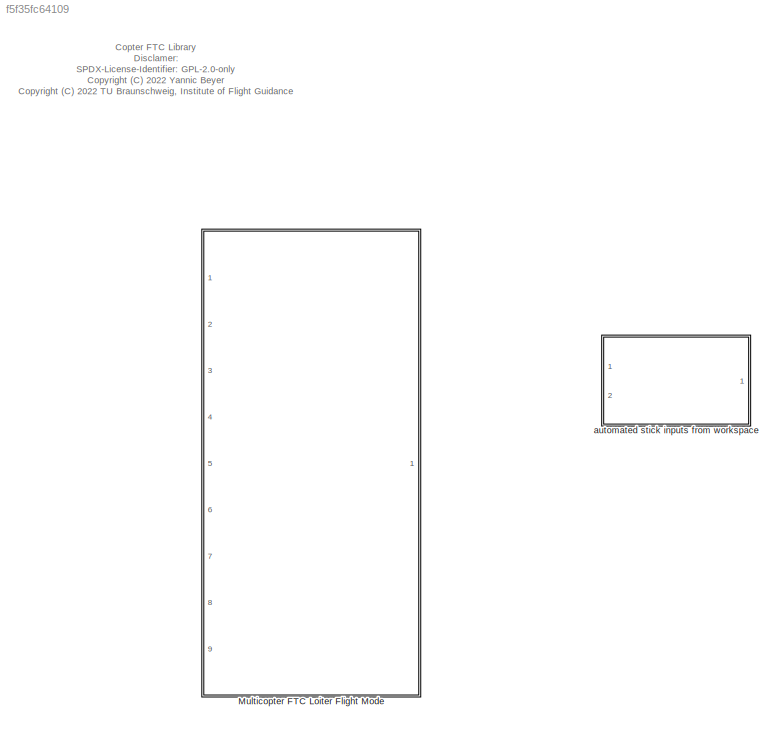
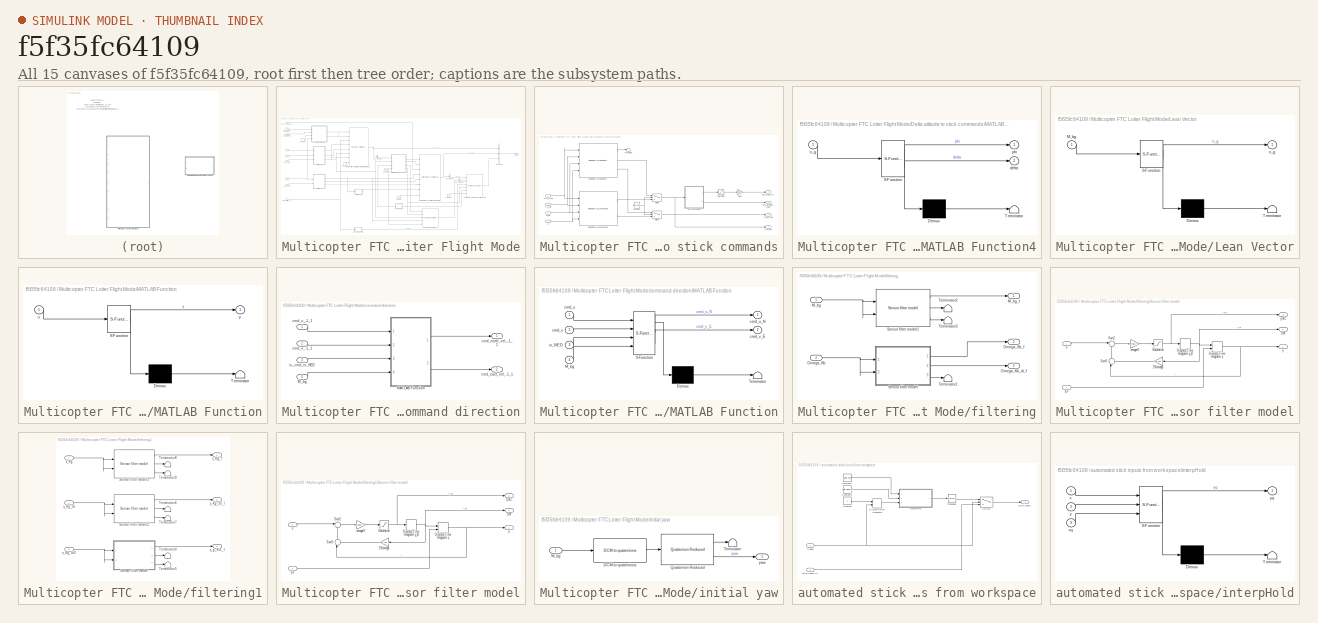
[diagram: thumbnail index - all 15 canvases of the model, root first then tree order]
MODEL slx_f5f35fc64109
KIND library
CONFIG AbsTol = auto
CONFIG EnableMultiTasking = off
CONFIG FixedStep = auto
CONFIG MaxStep = auto
CONFIG MinStep = auto
CONFIG RelTol = 1e-3
CONFIG SampleTimeConstraint = Unconstrained
CONFIG Solver = VariableStepAuto
CONFIG SolverName = VariableStepAuto
CONFIG StartTime = 0.0
CONFIG StopTime = 10.0
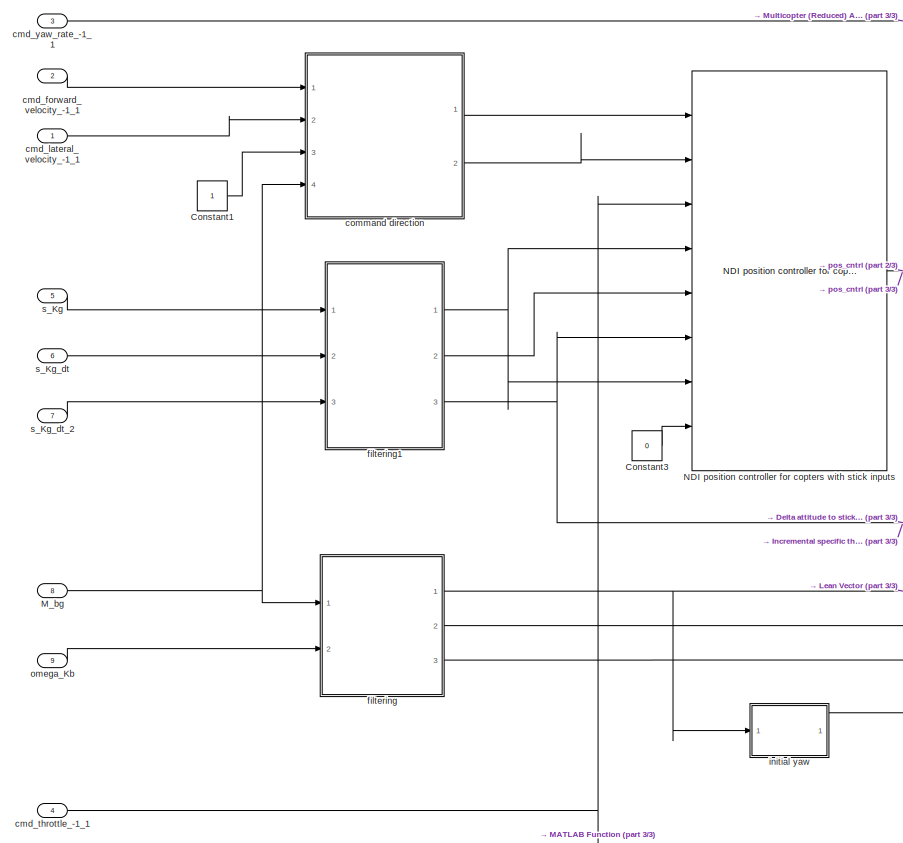
[diagram: Multicopter FTC Loiter Flight Mode - part 1/3, middle left region]
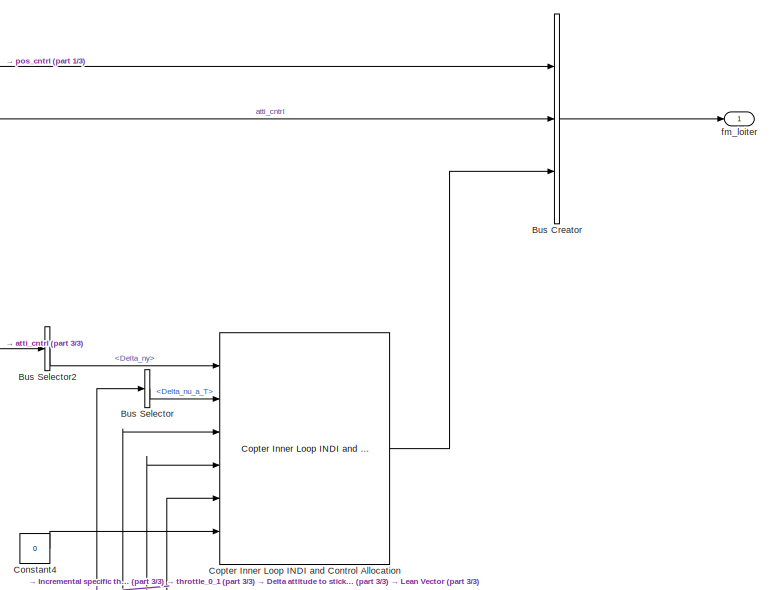
[diagram: Multicopter FTC Loiter Flight Mode - part 2/3, middle right region]
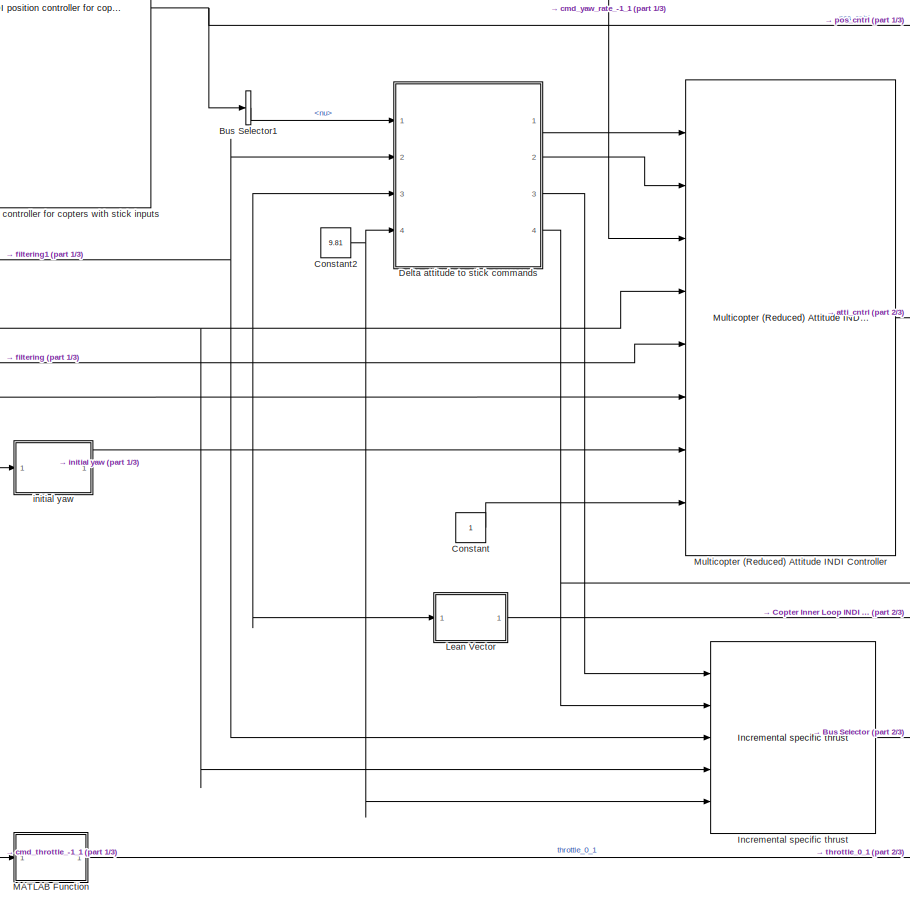
[diagram: Multicopter FTC Loiter Flight Mode - part 3/3, center side, full height]
BLOCK [SubSystem] Multicopter FTC Loiter Flight Mode
  Ports = [9, 1]
  RequestExecContextInheritance = off
BLOCK [BusCreator] Multicopter FTC Loiter Flight Mode/Bus Creator
  DisplayOption = bar
  InheritFromInputs = on
  Inputs = 3
  Ports = [3, 1]
BLOCK [BusSelector] Multicopter FTC Loiter Flight Mode/Bus Selector
  OutputAsBus = off
  OutputSignals = Delta_nu_a_T
  Ports = [1, 1]
BLOCK [BusSelector] Multicopter FTC Loiter Flight Mode/Bus Selector1
  OutputAsBus = off
  OutputSignals = pseudo_control.nu
  Ports = [1, 1]
BLOCK [BusSelector] Multicopter FTC Loiter Flight Mode/Bus Selector2
  OutputAsBus = off
  OutputSignals = pseudo_control.Delta_ny
  Ports = [1, 1]
BLOCK [Constant] Multicopter FTC Loiter Flight Mode/Constant
BLOCK [Constant] Multicopter FTC Loiter Flight Mode/Constant1
BLOCK [Constant] Multicopter FTC Loiter Flight Mode/Constant2
  Value = 9.81
BLOCK [Constant] Multicopter FTC Loiter Flight Mode/Constant3
  Value = 0
BLOCK [Constant] Multicopter FTC Loiter Flight Mode/Constant4
  Value = 0
BLOCK [Reference] Multicopter FTC Loiter Flight Mode/Copter Inner Loop INDI and Control Allocation  REF=indi_lib/Copter Inner Loop INDI and Control Allocation  (lib defined in slx_750e0a027594)
  Ports = [6, 1]
  SourceBlock = indi_lib/Copter Inner Loop INDI and Control Allocation
  SourceProductName = LADAC
BLOCK [SubSystem] Multicopter FTC Loiter Flight Mode/Delta attitude to stick commands
  Ports = [4, 4]
  RequestExecContextInheritance = off
BLOCK [Constant] Multicopter FTC Loiter Flight Mode/Delta attitude to stick commands/Constant
  Value = fm.psc.inditype
BLOCK [Gain] Multicopter FTC Loiter Flight Mode/Delta attitude to stick commands/Gain1
  Gain = 1/fm.atc.rm.leanmax
  OutDataTypeStr = Inherit: Inherit via internal rule
  ParamDataTypeStr = Inherit: Inherit via internal rule
  SaturateOnIntegerOverflow = off
BLOCK [Reference] Multicopter FTC Loiter Flight Mode/Delta attitude to stick commands/INDI Copter Acc 2 Atti (Smeur)  REF=indi_lib/INDI Copter Acc 2 Atti (Smeur)  (lib defined in slx_750e0a027594)
  Ports = [4, 3]
  SourceBlock = indi_lib/INDI Copter Acc 2 Atti (Smeur)
  SourceProductName = LADAC
  SourceType = SubSystem
BLOCK [Reference] Multicopter FTC Loiter Flight Mode/Delta attitude to stick commands/INDI Copter Acc 2 Lean Vector  REF=indi_lib/INDI Copter Acc 2 Lean Vector  (lib defined in slx_750e0a027594)
  Ports = [4, 2]
  SourceBlock = indi_lib/INDI Copter Acc 2 Lean Vector
  SourceProductName = LADAC
  SourceType = SubSystem
BLOCK [SubSystem] Multicopter FTC Loiter Flight Mode/Delta attitude to stick commands/MATLAB Function4
  ErrorFcn = Stateflow.Translate.translate
  PermitHierarchicalResolution = ExplicitOnly
  Ports = [1, 2]
  RequestExecContextInheritance = off
  SFBlockType = MATLAB Function
  TreatAsAtomicUnit = on
BLOCK [Demux] Multicopter FTC Loiter Flight Mode/Delta attitude to stick commands/MATLAB Function4/ Demux 
  Outputs = 1
  Ports = [1, 1]
BLOCK [S-Function] Multicopter FTC Loiter Flight Mode/Delta attitude to stick commands/MATLAB Function4/ SFunction 
  EnableBusSupport = off
  FunctionName = sf_sfun
  PortCounts = [1 3]
  Ports = [1, 3]
  SFcnIsStateOwnerBlock = off
  SFunctionDeploymentMode = off
  Tag = Stateflow S-Function copterFtc_lib 3
BLOCK [Terminator] Multicopter FTC Loiter Flight Mode/Delta attitude to stick commands/MATLAB Function4/ Terminator 
BLOCK [Outport] Multicopter FTC Loiter Flight Mode/Delta attitude to stick commands/MATLAB Function4/delta
  IconDisplay = Port number
  Port = 2
BLOCK [Inport] Multicopter FTC Loiter Flight Mode/Delta attitude to stick commands/MATLAB Function4/n_g
  IconDisplay = Port number
BLOCK [Outport] Multicopter FTC Loiter Flight Mode/Delta attitude to stick commands/MATLAB Function4/phi
  IconDisplay = Port number
BLOCK [Inport] Multicopter FTC Loiter Flight Mode/Delta attitude to stick commands/M_bg
  IconDisplay = Port number
  Port = 3
BLOCK [Saturate] Multicopter FTC Loiter Flight Mode/Delta attitude to stick commands/Saturation1
  InputPortMap = u0
  LowerLimit = 0
  Ports = [1, 1]
  UpperLimit = fm.atc.rm.leanmax
BLOCK [Switch] Multicopter FTC Loiter Flight Mode/Delta attitude to stick commands/Switch
  Criteria = u2 > Threshold
  InputSameDT = off
  SaturateOnIntegerOverflow = off
  Threshold = 1.5
BLOCK [Switch] Multicopter FTC Loiter Flight Mode/Delta attitude to stick commands/Switch1
  Criteria = u2 > Threshold
  InputSameDT = off
  SaturateOnIntegerOverflow = off
  Threshold = 1.5
BLOCK [Outport] Multicopter FTC Loiter Flight Mode/Delta attitude to stick commands/T_spec_des
  IconDisplay = Port number
  Port = 3
BLOCK [Terminator] Multicopter FTC Loiter Flight Mode/Delta attitude to stick commands/Terminator
BLOCK [Inport] Multicopter FTC Loiter Flight Mode/Delta attitude to stick commands/g
  IconDisplay = Port number
  Port = 4
BLOCK [Outport] Multicopter FTC Loiter Flight Mode/Delta attitude to stick commands/lean_angle_0-1
  IconDisplay = Port number
BLOCK [Outport] Multicopter FTC Loiter Flight Mode/Delta attitude to stick commands/lean_direction_angle
  IconDisplay = Port number
  Port = 2
BLOCK [Outport] Multicopter FTC Loiter Flight Mode/Delta attitude to stick commands/n_g_des
  IconDisplay = Port number
  Port = 4
BLOCK [Inport] Multicopter FTC Loiter Flight Mode/Delta attitude to stick commands/nu_s_g_dt2
  IconDisplay = Port number
BLOCK [Inport] Multicopter FTC Loiter Flight Mode/Delta attitude to stick commands/s_g_dt2
  IconDisplay = Port number
  Port = 2
BLOCK [Reference] Multicopter FTC Loiter Flight Mode/Incremental specific thrust  REF=indi_lib/Incremental specific thrust  (lib defined in slx_750e0a027594)
  Ports = [5, 1]
  SourceBlock = indi_lib/Incremental specific thrust
  SourceProductName = LADAC
BLOCK [SubSystem] Multicopter FTC Loiter Flight Mode/Lean Vector
  ErrorFcn = Stateflow.Translate.translate
  PermitHierarchicalResolution = ExplicitOnly
  Ports = [1, 1]
  RequestExecContextInheritance = off
  SFBlockType = MATLAB Function
  TreatAsAtomicUnit = on
BLOCK [Demux] Multicopter FTC Loiter Flight Mode/Lean Vector/ Demux 
  Outputs = 1
  Ports = [1, 1]
BLOCK [S-Function] Multicopter FTC Loiter Flight Mode/Lean Vector/ SFunction 
  EnableBusSupport = off
  FunctionName = sf_sfun
  PortCounts = [1 2]
  Ports = [1, 2]
  SFcnIsStateOwnerBlock = off
  SFunctionDeploymentMode = off
  Tag = Stateflow S-Function copterFtc_lib 7
BLOCK [Terminator] Multicopter FTC Loiter Flight Mode/Lean Vector/ Terminator 
BLOCK [Inport] Multicopter FTC Loiter Flight Mode/Lean Vector/M_bg
  IconDisplay = Port number
BLOCK [Outport] Multicopter FTC Loiter Flight Mode/Lean Vector/n_g
  IconDisplay = Port number
BLOCK [SubSystem] Multicopter FTC Loiter Flight Mode/MATLAB Function
  ErrorFcn = Stateflow.Translate.translate
  PermitHierarchicalResolution = ExplicitOnly
  Ports = [1, 1]
  RequestExecContextInheritance = off
  SFBlockType = MATLAB Function
  TreatAsAtomicUnit = on
BLOCK [Demux] Multicopter FTC Loiter Flight Mode/MATLAB Function/ Demux 
  Outputs = 1
  Ports = [1, 1]
BLOCK [S-Function] Multicopter FTC Loiter Flight Mode/MATLAB Function/ SFunction 
  EnableBusSupport = off
  FunctionName = sf_sfun
  PortCounts = [1 2]
  Ports = [1, 2]
  SFcnIsStateOwnerBlock = off
  SFunctionDeploymentMode = off
  Tag = Stateflow S-Function copterFtc_lib 4
BLOCK [Terminator] Multicopter FTC Loiter Flight Mode/MATLAB Function/ Terminator 
BLOCK [Inport] Multicopter FTC Loiter Flight Mode/MATLAB Function/u
  IconDisplay = Port number
BLOCK [Outport] Multicopter FTC Loiter Flight Mode/MATLAB Function/y
  IconDisplay = Port number
BLOCK [Inport] Multicopter FTC Loiter Flight Mode/M_bg
  IconDisplay = Port number
  Port = 8
  SampleTime = double(fm.ts)
BLOCK [Reference] Multicopter FTC Loiter Flight Mode/Multicopter (Reduced) Attitude INDI Controller  REF=cntrlAttiRedIndi_lib/Multicopter (Reduced) Attitude INDI Controller
  Ports = [8, 1]
  SourceBlock = cntrlAttiRedIndi_lib/Multicopter (Reduced) Attitude INDI Controller
  SourceProductName = LADAC
BLOCK [Reference] Multicopter FTC Loiter Flight Mode/NDI position controller for copters with stick inputs  REF=cntrlPosNdi_lib/NDI position controller for copters
with stick inputs
  Ports = [8, 1]
  SourceBlock = cntrlPosNdi_lib/NDI position controller for copters\nwith stick inputs
  SourceProductName = LADAC
BLOCK [Inport] Multicopter FTC Loiter Flight Mode/cmd_forward_velocity_-1_1
  IconDisplay = Port number
  Port = 2
  SampleTime = double(fm.ts)
BLOCK [Inport] Multicopter FTC Loiter Flight Mode/cmd_lateral_velocity_-1_1
  IconDisplay = Port number
  SampleTime = double(fm.ts)
BLOCK [Inport] Multicopter FTC Loiter Flight Mode/cmd_throttle_-1_1
  IconDisplay = Port number
  Port = 4
  SampleTime = double(fm.ts)
BLOCK [Inport] Multicopter FTC Loiter Flight Mode/cmd_yaw_rate_-1_1
  IconDisplay = Port number
  Port = 3
  SampleTime = double(fm.ts)
BLOCK [SubSystem] Multicopter FTC Loiter Flight Mode/command direction
  Ports = [4, 2]
  RequestExecContextInheritance = off
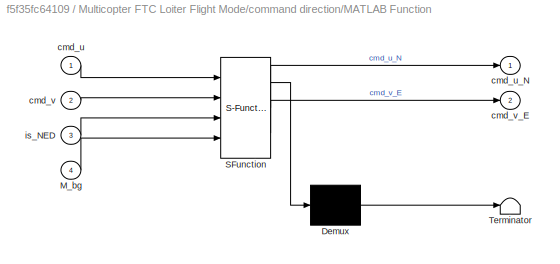
BLOCK [SubSystem] Multicopter FTC Loiter Flight Mode/command direction/MATLAB Function
  ErrorFcn = Stateflow.Translate.translate
  PermitHierarchicalResolution = ExplicitOnly
  Ports = [4, 2]
  RequestExecContextInheritance = off
  SFBlockType = MATLAB Function
  TreatAsAtomicUnit = on
BLOCK [Demux] Multicopter FTC Loiter Flight Mode/command direction/MATLAB Function/ Demux 
  Outputs = 1
  Ports = [1, 1]
BLOCK [S-Function] Multicopter FTC Loiter Flight Mode/command direction/MATLAB Function/ SFunction 
  EnableBusSupport = off
  FunctionName = sf_sfun
  PortCounts = [4 3]
  Ports = [4, 3]
  SFcnIsStateOwnerBlock = off
  SFunctionDeploymentMode = off
  Tag = Stateflow S-Function copterFtc_lib 1
BLOCK [Terminator] Multicopter FTC Loiter Flight Mode/command direction/MATLAB Function/ Terminator 
BLOCK [Inport] Multicopter FTC Loiter Flight Mode/command direction/MATLAB Function/M_bg
  IconDisplay = Port number
  Port = 4
BLOCK [Inport] Multicopter FTC Loiter Flight Mode/command direction/MATLAB Function/cmd_u
  IconDisplay = Port number
BLOCK [Outport] Multicopter FTC Loiter Flight Mode/command direction/MATLAB Function/cmd_u_N
  IconDisplay = Port number
BLOCK [Inport] Multicopter FTC Loiter Flight Mode/command direction/MATLAB Function/cmd_v
  IconDisplay = Port number
  Port = 2
BLOCK [Outport] Multicopter FTC Loiter Flight Mode/command direction/MATLAB Function/cmd_v_E
  IconDisplay = Port number
  Port = 2
BLOCK [Inport] Multicopter FTC Loiter Flight Mode/command direction/MATLAB Function/is_NED
  IconDisplay = Port number
  Port = 3
BLOCK [Inport] Multicopter FTC Loiter Flight Mode/command direction/M_bg
  IconDisplay = Port number
  Port = 4
BLOCK [Outport] Multicopter FTC Loiter Flight Mode/command direction/cmd_east_vel_-1_1
  IconDisplay = Port number
  Port = 2
BLOCK [Outport] Multicopter FTC Loiter Flight Mode/command direction/cmd_north_vel_-1_1
  IconDisplay = Port number
BLOCK [Inport] Multicopter FTC Loiter Flight Mode/command direction/cmd_u_-1_1
  IconDisplay = Port number
BLOCK [Inport] Multicopter FTC Loiter Flight Mode/command direction/cmd_v_-1_1
  IconDisplay = Port number
  Port = 2
BLOCK [Inport] Multicopter FTC Loiter Flight Mode/command direction/is_cmd_in_NED
  IconDisplay = Port number
  Port = 3
BLOCK [SubSystem] Multicopter FTC Loiter Flight Mode/filtering
  Ports = [2, 3]
  RequestExecContextInheritance = off
BLOCK [Inport] Multicopter FTC Loiter Flight Mode/filtering/M_bg
  IconDisplay = Port number
BLOCK [Outport] Multicopter FTC Loiter Flight Mode/filtering/M_bg_f
  IconDisplay = Port number
BLOCK [Inport] Multicopter FTC Loiter Flight Mode/filtering/Omega_Kb
  IconDisplay = Port number
  Port = 2
BLOCK [Outport] Multicopter FTC Loiter Flight Mode/filtering/Omega_Kb_dt_f
  IconDisplay = Port number
  Port = 3
BLOCK [Outport] Multicopter FTC Loiter Flight Mode/filtering/Omega_Kb_f
  IconDisplay = Port number
  Port = 2
BLOCK [SubSystem] Multicopter FTC Loiter Flight Mode/filtering/Sensor filter model
  Ports = [2, 3]
  RequestExecContextInheritance = off
BLOCK [Gain] Multicopter FTC Loiter Flight Mode/filtering/Sensor filter model/2*d//omega
  Gain = 2*d./omega
  OutDataTypeStr = Inherit: Inherit via internal rule
  ParamDataTypeStr = Inherit: Inherit via internal rule
  SaturateOnIntegerOverflow = off
BLOCK [DiscreteIntegrator] Multicopter FTC Loiter Flight Mode/filtering/Sensor filter model/Discrete-Time Integrator y
  ICPrevOutput = DiscIntNeverNeededParam
  ICPrevScaledInput = DiscIntNeverNeededParam
  InitialCondition = x_init
  InitialConditionSetting = Auto
  InitialConditionSource = external
  LimitOutput = on
  LowerSaturationLimit = x_min
  Ports = [2, 1]
  SampleTime = -1
  UpperSaturationLimit = x_max
BLOCK [DiscreteIntegrator] Multicopter FTC Loiter Flight Mode/filtering/Sensor filter model/Discrete-Time Integrator y_dt
  ICPrevOutput = DiscIntNeverNeededParam
  ICPrevScaledInput = DiscIntNeverNeededParam
  InitialCondition = x_dt_init
  InitialConditionSetting = Auto
  LimitOutput = on
  LowerSaturationLimit = x_dt_min
  Ports = [1, 1]
  SampleTime = -1
  UpperSaturationLimit = x_dt_max
BLOCK [Saturate] Multicopter FTC Loiter Flight Mode/filtering/Sensor filter model/Saturation
  InputPortMap = u0
  LowerLimit = x_dt2_min
  Ports = [1, 1]
  UpperLimit = x_dt2_max
BLOCK [Sum] Multicopter FTC Loiter Flight Mode/filtering/Sensor filter model/Sum2
  IconShape = round
  InputSameDT = off
  Inputs = |+-
  OutDataTypeStr = Inherit: Inherit via internal rule
  Ports = [2, 1]
  SaturateOnIntegerOverflow = off
BLOCK [Sum] Multicopter FTC Loiter Flight Mode/filtering/Sensor filter model/Sum3
  IconShape = round
  InputSameDT = off
  Inputs = |++
  OutDataTypeStr = Inherit: Inherit via internal rule
  Ports = [2, 1]
  SaturateOnIntegerOverflow = off
BLOCK [Gain] Multicopter FTC Loiter Flight Mode/filtering/Sensor filter model/omega^2
  Gain = omega.^2
  OutDataTypeStr = Inherit: Inherit via internal rule
  ParamDataTypeStr = Inherit: Inherit via internal rule
  SaturateOnIntegerOverflow = off
BLOCK [Inport] Multicopter FTC Loiter Flight Mode/filtering/Sensor filter model/u
  IconDisplay = Port number
BLOCK [Outport] Multicopter FTC Loiter Flight Mode/filtering/Sensor filter model/y
  IconDisplay = Port number
BLOCK [Inport] Multicopter FTC Loiter Flight Mode/filtering/Sensor filter model/y_0
  IconDisplay = Port number
  Port = 2
BLOCK [Outport] Multicopter FTC Loiter Flight Mode/filtering/Sensor filter model/y_dt
  IconDisplay = Port number
  Port = 2
BLOCK [Outport] Multicopter FTC Loiter Flight Mode/filtering/Sensor filter model/y_dt2
  IconDisplay = Port number
  Port = 3
BLOCK [Reference] Multicopter FTC Loiter Flight Mode/filtering/Sensor filter model1  REF=$bdroot/Multicopter FTC Loiter Flight Mode/filtering/Sensor filter model
  Ports = [2, 3]
  SourceBlock = $bdroot/Multicopter FTC Loiter Flight Mode/filtering/Sensor filter model
BLOCK [Terminator] Multicopter FTC Loiter Flight Mode/filtering/Terminator1
BLOCK [Terminator] Multicopter FTC Loiter Flight Mode/filtering/Terminator2
BLOCK [Terminator] Multicopter FTC Loiter Flight Mode/filtering/Terminator3
BLOCK [SubSystem] Multicopter FTC Loiter Flight Mode/filtering1
  Ports = [3, 3]
  RequestExecContextInheritance = off
BLOCK [SubSystem] Multicopter FTC Loiter Flight Mode/filtering1/Sensor filter model
  Ports = [2, 3]
  RequestExecContextInheritance = off
BLOCK [Gain] Multicopter FTC Loiter Flight Mode/filtering1/Sensor filter model/2*d//omega
  Gain = 2*d./omega
  OutDataTypeStr = Inherit: Inherit via internal rule
  ParamDataTypeStr = Inherit: Inherit via internal rule
  SaturateOnIntegerOverflow = off
BLOCK [DiscreteIntegrator] Multicopter FTC Loiter Flight Mode/filtering1/Sensor filter model/Discrete-Time Integrator y
  ICPrevOutput = DiscIntNeverNeededParam
  ICPrevScaledInput = DiscIntNeverNeededParam
  InitialCondition = x_init
  InitialConditionSetting = Auto
  InitialConditionSource = external
  LimitOutput = on
  LowerSaturationLimit = x_min
  Ports = [2, 1]
  SampleTime = -1
  UpperSaturationLimit = x_max
BLOCK [DiscreteIntegrator] Multicopter FTC Loiter Flight Mode/filtering1/Sensor filter model/Discrete-Time Integrator y_dt
  ICPrevOutput = DiscIntNeverNeededParam
  ICPrevScaledInput = DiscIntNeverNeededParam
  InitialCondition = x_dt_init
  InitialConditionSetting = Auto
  LimitOutput = on
  LowerSaturationLimit = x_dt_min
  Ports = [1, 1]
  SampleTime = -1
  UpperSaturationLimit = x_dt_max
BLOCK [Saturate] Multicopter FTC Loiter Flight Mode/filtering1/Sensor filter model/Saturation
  InputPortMap = u0
  LowerLimit = x_dt2_min
  Ports = [1, 1]
  UpperLimit = x_dt2_max
BLOCK [Sum] Multicopter FTC Loiter Flight Mode/filtering1/Sensor filter model/Sum2
  IconShape = round
  InputSameDT = off
  Inputs = |+-
  OutDataTypeStr = Inherit: Inherit via internal rule
  Ports = [2, 1]
  SaturateOnIntegerOverflow = off
BLOCK [Sum] Multicopter FTC Loiter Flight Mode/filtering1/Sensor filter model/Sum3
  IconShape = round
  InputSameDT = off
  Inputs = |++
  OutDataTypeStr = Inherit: Inherit via internal rule
  Ports = [2, 1]
  SaturateOnIntegerOverflow = off
BLOCK [Gain] Multicopter FTC Loiter Flight Mode/filtering1/Sensor filter model/omega^2
  Gain = omega.^2
  OutDataTypeStr = Inherit: Inherit via internal rule
  ParamDataTypeStr = Inherit: Inherit via internal rule
  SaturateOnIntegerOverflow = off
BLOCK [Inport] Multicopter FTC Loiter Flight Mode/filtering1/Sensor filter model/u
  IconDisplay = Port number
BLOCK [Outport] Multicopter FTC Loiter Flight Mode/filtering1/Sensor filter model/y
  IconDisplay = Port number
BLOCK [Inport] Multicopter FTC Loiter Flight Mode/filtering1/Sensor filter model/y_0
  IconDisplay = Port number
  Port = 2
BLOCK [Outport] Multicopter FTC Loiter Flight Mode/filtering1/Sensor filter model/y_dt
  IconDisplay = Port number
  Port = 2
BLOCK [Outport] Multicopter FTC Loiter Flight Mode/filtering1/Sensor filter model/y_dt2
  IconDisplay = Port number
  Port = 3
BLOCK [Reference] Multicopter FTC Loiter Flight Mode/filtering1/Sensor filter model2  REF=$bdroot/Multicopter FTC Loiter Flight Mode/filtering1/Sensor filter model
  Ports = [2, 3]
  SourceBlock = $bdroot/Multicopter FTC Loiter Flight Mode/filtering1/Sensor filter model
BLOCK [Reference] Multicopter FTC Loiter Flight Mode/filtering1/Sensor filter model3  REF=$bdroot/Multicopter FTC Loiter Flight Mode/filtering1/Sensor filter model
  Ports = [2, 3]
  SourceBlock = $bdroot/Multicopter FTC Loiter Flight Mode/filtering1/Sensor filter model
BLOCK [Terminator] Multicopter FTC Loiter Flight Mode/filtering1/Terminator4
BLOCK [Terminator] Multicopter FTC Loiter Flight Mode/filtering1/Terminator5
BLOCK [Terminator] Multicopter FTC Loiter Flight Mode/filtering1/Terminator6
BLOCK [Terminator] Multicopter FTC Loiter Flight Mode/filtering1/Terminator7
BLOCK [Terminator] Multicopter FTC Loiter Flight Mode/filtering1/Terminator8
BLOCK [Terminator] Multicopter FTC Loiter Flight Mode/filtering1/Terminator9
BLOCK [Inport] Multicopter FTC Loiter Flight Mode/filtering1/s_Kg
  IconDisplay = Port number
BLOCK [Inport] Multicopter FTC Loiter Flight Mode/filtering1/s_Kg_dt
  IconDisplay = Port number
  Port = 2
BLOCK [Inport] Multicopter FTC Loiter Flight Mode/filtering1/s_Kg_dt2
  IconDisplay = Port number
  Port = 3
BLOCK [Outport] Multicopter FTC Loiter Flight Mode/filtering1/s_Kg_dt_f
  IconDisplay = Port number
  Port = 2
BLOCK [Outport] Multicopter FTC Loiter Flight Mode/filtering1/s_Kg_f
  IconDisplay = Port number
BLOCK [Outport] Multicopter FTC Loiter Flight Mode/filtering1/s_g_dt2_f
  IconDisplay = Port number
  Port = 3
BLOCK [Outport] Multicopter FTC Loiter Flight Mode/fm_loiter
  IconDisplay = Port number
  SampleTime = double(fm.ts)
  SamplingMode = Sample based
  SignalType = real
BLOCK [SubSystem] Multicopter FTC Loiter Flight Mode/initial yaw
  Ports = [1, 1]
  RequestExecContextInheritance = off
BLOCK [Reference] Multicopter FTC Loiter Flight Mode/initial yaw/DCM to quaternions  REF=axes_transformation_lib/DCM to quaternions  (lib defined in slx_69e2413c78c0)
  Ports = [1, 1]
  SourceBlock = axes_transformation_lib/DCM to quaternions
  SourceProductName = LADAC
  SourceType = SubSystem
BLOCK [Inport] Multicopter FTC Loiter Flight Mode/initial yaw/M_bg
  IconDisplay = Port number
BLOCK [Reference] Multicopter FTC Loiter Flight Mode/initial yaw/Quaternion Reduced  REF=cntrlAttiRedIndi_lib/Multicopter (Reduced) Attitude INDI Controller/measure/Quaternion Reduced
  Ports = [1, 2]
  SourceBlock = cntrlAttiRedIndi_lib/Multicopter (Reduced) Attitude INDI Controller/measure/Quaternion Reduced
  SourceProductName = LADAC
  SourceType = SubSystem
BLOCK [Terminator] Multicopter FTC Loiter Flight Mode/initial yaw/Terminator
BLOCK [Outport] Multicopter FTC Loiter Flight Mode/initial yaw/yaw
  IconDisplay = Port number
BLOCK [Inport] Multicopter FTC Loiter Flight Mode/omega_Kb
  IconDisplay = Port number
  Port = 9
  SampleTime = double(fm.ts)
BLOCK [Inport] Multicopter FTC Loiter Flight Mode/s_Kg
  IconDisplay = Port number
  Port = 5
  SampleTime = double(fm.ts)
BLOCK [Inport] Multicopter FTC Loiter Flight Mode/s_Kg_dt
  IconDisplay = Port number
  Port = 6
  SampleTime = double(fm.ts)
BLOCK [Inport] Multicopter FTC Loiter Flight Mode/s_Kg_dt_2
  IconDisplay = Port number
  Port = 7
  SampleTime = double(fm.ts)
BLOCK [SubSystem] automated stick inputs from workspace
  Ports = [2, 1]
  RequestExecContextInheritance = off
BLOCK [Constant] automated stick inputs from workspace/Constant
BLOCK [Constant] automated stick inputs from workspace/Constant1
  Value = simin.time
BLOCK [Constant] automated stick inputs from workspace/Constant2
  Value = simin.signals.values
BLOCK [DiscreteIntegrator] automated stick inputs from workspace/Discrete-Time Integrator
  ExternalReset = rising
  ICPrevOutput = DiscIntNeverNeededParam
  ICPrevScaledInput = DiscIntNeverNeededParam
  InitialConditionSetting = Auto
  Ports = [2, 1]
  SampleTime = -1
BLOCK [Switch] automated stick inputs from workspace/Switch
  Criteria = u2 > Threshold
  InputSameDT = off
  SaturateOnIntegerOverflow = off
  Threshold = 0.5
BLOCK [Math] automated stick inputs from workspace/Transpose
  Operator = transpose
  Ports = [1, 1]
BLOCK [SubSystem] automated stick inputs from workspace/interpHold
  ErrorFcn = Stateflow.Translate.translate
  PermitHierarchicalResolution = ExplicitOnly
  Ports = [3, 1]
  RequestExecContextInheritance = off
  SFBlockType = MATLAB Function
  TreatAsAtomicUnit = on
BLOCK [Demux] automated stick inputs from workspace/interpHold/ Demux 
  Outputs = 1
  Ports = [1, 1]
BLOCK [S-Function] automated stick inputs from workspace/interpHold/ SFunction 
  EnableBusSupport = on
  FunctionName = sf_sfun
  PortCounts = [3 2]
  Ports = [3, 2]
  SFcnIsStateOwnerBlock = off
  SFunctionDeploymentMode = off
  Tag = Stateflow S-Function copterFtc_lib 6
BLOCK [Terminator] automated stick inputs from workspace/interpHold/ Terminator 
BLOCK [Inport] automated stick inputs from workspace/interpHold/x
  IconDisplay = Port number
BLOCK [Inport] automated stick inputs from workspace/interpHold/xq
  IconDisplay = Port number
  Port = 3
BLOCK [Inport] automated stick inputs from workspace/interpHold/y
  IconDisplay = Port number
  Port = 2
BLOCK [Outport] automated stick inputs from workspace/interpHold/yq
  IconDisplay = Port number
BLOCK [Outport] automated stick inputs from workspace/stick inputs
  IconDisplay = Port number
BLOCK [Inport] automated stick inputs from workspace/stick inputs in
  IconDisplay = Port number
  Port = 2
BLOCK [Inport] automated stick inputs from workspace/trigger
  IconDisplay = Port number
ANNOTATION (root): Copter FTC Library Disclamer: SPDX-License-Identifier: GPL-2.0-only <copyright redacted>
LINE Multicopter FTC Loiter Flight Mode/Bus Creator:1 -> Multicopter FTC Loiter Flight Mode/fm_loiter:1
LINE Multicopter FTC Loiter Flight Mode/Bus Selector1:1 -> Multicopter FTC Loiter Flight Mode/Delta attitude to stick commands:1
LINE Multicopter FTC Loiter Flight Mode/Bus Selector2:1 -> Multicopter FTC Loiter Flight Mode/Copter Inner Loop INDI and Control Allocation:1
LINE Multicopter FTC Loiter Flight Mode/Bus Selector:1 -> Multicopter FTC Loiter Flight Mode/Copter Inner Loop INDI and Control Allocation:2
LINE Multicopter FTC Loiter Flight Mode/Constant1:1 -> Multicopter FTC Loiter Flight Mode/command direction:3
NET Multicopter FTC Loiter Flight Mode/Constant2:1 -> Multicopter FTC Loiter Flight Mode/Delta attitude to stick commands:4, Multicopter FTC Loiter Flight Mode/Incremental specific thrust:5
LINE Multicopter FTC Loiter Flight Mode/Constant3:1 -> Multicopter FTC Loiter Flight Mode/NDI position controller for copters with stick inputs:8
LINE Multicopter FTC Loiter Flight Mode/Constant4:1 -> Multicopter FTC Loiter Flight Mode/Copter Inner Loop INDI and Control Allocation:6
LINE Multicopter FTC Loiter Flight Mode/Constant:1 -> Multicopter FTC Loiter Flight Mode/Multicopter (Reduced) Attitude INDI Controller:8
LINE Multicopter FTC Loiter Flight Mode/Copter Inner Loop INDI and Control Allocation:1 -> Multicopter FTC Loiter Flight Mode/Bus Creator:3
NET Multicopter FTC Loiter Flight Mode/Delta attitude to stick commands/Constant:1 -> Multicopter FTC Loiter Flight Mode/Delta attitude to stick commands/Switch1:2, Multicopter FTC Loiter Flight Mode/Delta attitude to stick commands/Switch:2
LINE Multicopter FTC Loiter Flight Mode/Delta attitude to stick commands/Gain1:1 -> Multicopter FTC Loiter Flight Mode/Delta attitude to stick commands/lean_angle_0-1:1
LINE Multicopter FTC Loiter Flight Mode/Delta attitude to stick commands/INDI Copter Acc 2 Atti (Smeur):1 -> Multicopter FTC Loiter Flight Mode/Delta attitude to stick commands/Terminator:1
LINE Multicopter FTC Loiter Flight Mode/Delta attitude to stick commands/INDI Copter Acc 2 Atti (Smeur):2 -> Multicopter FTC Loiter Flight Mode/Delta attitude to stick commands/Switch:1
LINE Multicopter FTC Loiter Flight Mode/Delta attitude to stick commands/INDI Copter Acc 2 Atti (Smeur):3 -> Multicopter FTC Loiter Flight Mode/Delta attitude to stick commands/Switch1:1
LINE Multicopter FTC Loiter Flight Mode/Delta attitude to stick commands/INDI Copter Acc 2 Lean Vector:1 -> Multicopter FTC Loiter Flight Mode/Delta attitude to stick commands/Switch:3
LINE Multicopter FTC Loiter Flight Mode/Delta attitude to stick commands/INDI Copter Acc 2 Lean Vector:2 -> Multicopter FTC Loiter Flight Mode/Delta attitude to stick commands/Switch1:3
LINE Multicopter FTC Loiter Flight Mode/Delta attitude to stick commands/MATLAB Function4:1 -> Multicopter FTC Loiter Flight Mode/Delta attitude to stick commands/Saturation1:1
LINE Multicopter FTC Loiter Flight Mode/Delta attitude to stick commands/MATLAB Function4:2 -> Multicopter FTC Loiter Flight Mode/Delta attitude to stick commands/lean_direction_angle:1
NET Multicopter FTC Loiter Flight Mode/Delta attitude to stick commands/M_bg:1 -> Multicopter FTC Loiter Flight Mode/Delta attitude to stick commands/INDI Copter Acc 2 Atti (Smeur):3, Multicopter FTC Loiter Flight Mode/Delta attitude to stick commands/INDI Copter Acc 2 Lean Vector:3
LINE Multicopter FTC Loiter Flight Mode/Delta attitude to stick commands/Saturation1:1 -> Multicopter FTC Loiter Flight Mode/Delta attitude to stick commands/Gain1:1
LINE Multicopter FTC Loiter Flight Mode/Delta attitude to stick commands/Switch1:1 -> Multicopter FTC Loiter Flight Mode/Delta attitude to stick commands/T_spec_des:1
NET Multicopter FTC Loiter Flight Mode/Delta attitude to stick commands/Switch:1 -> Multicopter FTC Loiter Flight Mode/Delta attitude to stick commands/MATLAB Function4:1, Multicopter FTC Loiter Flight Mode/Delta attitude to stick commands/n_g_des:1
NET Multicopter FTC Loiter Flight Mode/Delta attitude to stick commands/g:1 -> Multicopter FTC Loiter Flight Mode/Delta attitude to stick commands/INDI Copter Acc 2 Atti (Smeur):4, Multicopter FTC Loiter Flight Mode/Delta attitude to stick commands/INDI Copter Acc 2 Lean Vector:4
NET Multicopter FTC Loiter Flight Mode/Delta attitude to stick commands/nu_s_g_dt2:1 -> Multicopter FTC Loiter Flight Mode/Delta attitude to stick commands/INDI Copter Acc 2 Atti (Smeur):1, Multicopter FTC Loiter Flight Mode/Delta attitude to stick commands/INDI Copter Acc 2 Lean Vector:1
NET Multicopter FTC Loiter Flight Mode/Delta attitude to stick commands/s_g_dt2:1 -> Multicopter FTC Loiter Flight Mode/Delta attitude to stick commands/INDI Copter Acc 2 Atti (Smeur):2, Multicopter FTC Loiter Flight Mode/Delta attitude to stick commands/INDI Copter Acc 2 Lean Vector:2
LINE Multicopter FTC Loiter Flight Mode/Delta attitude to stick commands:1 -> Multicopter FTC Loiter Flight Mode/Multicopter (Reduced) Attitude INDI Controller:1
LINE Multicopter FTC Loiter Flight Mode/Delta attitude to stick commands:2 -> Multicopter FTC Loiter Flight Mode/Multicopter (Reduced) Attitude INDI Controller:2
LINE Multicopter FTC Loiter Flight Mode/Delta attitude to stick commands:3 -> Multicopter FTC Loiter Flight Mode/Incremental specific thrust:1
NET Multicopter FTC Loiter Flight Mode/Delta attitude to stick commands:4 -> Multicopter FTC Loiter Flight Mode/Copter Inner Loop INDI and Control Allocation:4, Multicopter FTC Loiter Flight Mode/Incremental specific thrust:2
LINE Multicopter FTC Loiter Flight Mode/Incremental specific thrust:1 -> Multicopter FTC Loiter Flight Mode/Bus Selector:1
LINE Multicopter FTC Loiter Flight Mode/Lean Vector:1 -> Multicopter FTC Loiter Flight Mode/Copter Inner Loop INDI and Control Allocation:5
LINE Multicopter FTC Loiter Flight Mode/MATLAB Function:1 -> Multicopter FTC Loiter Flight Mode/Copter Inner Loop INDI and Control Allocation:3
NET Multicopter FTC Loiter Flight Mode/M_bg:1 -> Multicopter FTC Loiter Flight Mode/command direction:4, Multicopter FTC Loiter Flight Mode/filtering:1
NET Multicopter FTC Loiter Flight Mode/Multicopter (Reduced) Attitude INDI Controller:1 -> Multicopter FTC Loiter Flight Mode/Bus Creator:2, Multicopter FTC Loiter Flight Mode/Bus Selector2:1
NET Multicopter FTC Loiter Flight Mode/NDI position controller for copters with stick inputs:1 -> Multicopter FTC Loiter Flight Mode/Bus Creator:1, Multicopter FTC Loiter Flight Mode/Bus Selector1:1
LINE Multicopter FTC Loiter Flight Mode/cmd_forward_velocity_-1_1:1 -> Multicopter FTC Loiter Flight Mode/command direction:1
LINE Multicopter FTC Loiter Flight Mode/cmd_lateral_velocity_-1_1:1 -> Multicopter FTC Loiter Flight Mode/command direction:2
NET Multicopter FTC Loiter Flight Mode/cmd_throttle_-1_1:1 -> Multicopter FTC Loiter Flight Mode/MATLAB Function:1, Multicopter FTC Loiter Flight Mode/NDI position controller for copters with stick inputs:3
LINE Multicopter FTC Loiter Flight Mode/cmd_yaw_rate_-1_1:1 -> Multicopter FTC Loiter Flight Mode/Multicopter (Reduced) Attitude INDI Controller:3
LINE Multicopter FTC Loiter Flight Mode/command direction/MATLAB Function:1 -> Multicopter FTC Loiter Flight Mode/command direction/cmd_north_vel_-1_1:1
LINE Multicopter FTC Loiter Flight Mode/command direction/MATLAB Function:2 -> Multicopter FTC Loiter Flight Mode/command direction/cmd_east_vel_-1_1:1
LINE Multicopter FTC Loiter Flight Mode/command direction/M_bg:1 -> Multicopter FTC Loiter Flight Mode/command direction/MATLAB Function:4
LINE Multicopter FTC Loiter Flight Mode/command direction/cmd_u_-1_1:1 -> Multicopter FTC Loiter Flight Mode/command direction/MATLAB Function:1
LINE Multicopter FTC Loiter Flight Mode/command direction/cmd_v_-1_1:1 -> Multicopter FTC Loiter Flight Mode/command direction/MATLAB Function:2
LINE Multicopter FTC Loiter Flight Mode/command direction/is_cmd_in_NED:1 -> Multicopter FTC Loiter Flight Mode/command direction/MATLAB Function:3
LINE Multicopter FTC Loiter Flight Mode/command direction:1 -> Multicopter FTC Loiter Flight Mode/NDI position controller for copters with stick inputs:1
LINE Multicopter FTC Loiter Flight Mode/command direction:2 -> Multicopter FTC Loiter Flight Mode/NDI position controller for copters with stick inputs:2
NET Multicopter FTC Loiter Flight Mode/filtering/M_bg:1 -> Multicopter FTC Loiter Flight Mode/filtering/Sensor filter model1:1, Multicopter FTC Loiter Flight Mode/filtering/Sensor filter model1:2
NET Multicopter FTC Loiter Flight Mode/filtering/Omega_Kb:1 -> Multicopter FTC Loiter Flight Mode/filtering/Sensor filter model:1, Multicopter FTC Loiter Flight Mode/filtering/Sensor filter model:2
LINE Multicopter FTC Loiter Flight Mode/filtering/Sensor filter model/2*d//omega:1 -> Multicopter FTC Loiter Flight Mode/filtering/Sensor filter model/Sum3:2
NET Multicopter FTC Loiter Flight Mode/filtering/Sensor filter model/Discrete-Time Integrator y:1 -> Multicopter FTC Loiter Flight Mode/filtering/Sensor filter model/Sum3:1, Multicopter FTC Loiter Flight Mode/filtering/Sensor filter model/y:1
NET Multicopter FTC Loiter Flight Mode/filtering/Sensor filter model/Discrete-Time Integrator y_dt:1 -> Multicopter FTC Loiter Flight Mode/filtering/Sensor filter model/2*d//omega:1, Multicopter FTC Loiter Flight Mode/filtering/Sensor filter model/Discrete-Time Integrator y:1, Multicopter FTC Loiter Flight Mode/filtering/Sensor filter model/y_dt:1
NET Multicopter FTC Loiter Flight Mode/filtering/Sensor filter model/Saturation:1 -> Multicopter FTC Loiter Flight Mode/filtering/Sensor filter model/Discrete-Time Integrator y_dt:1, Multicopter FTC Loiter Flight Mode/filtering/Sensor filter model/y_dt2:1
LINE Multicopter FTC Loiter Flight Mode/filtering/Sensor filter model/Sum2:1 -> Multicopter FTC Loiter Flight Mode/filtering/Sensor filter model/omega^2:1
LINE Multicopter FTC Loiter Flight Mode/filtering/Sensor filter model/Sum3:1 -> Multicopter FTC Loiter Flight Mode/filtering/Sensor filter model/Sum2:2
LINE Multicopter FTC Loiter Flight Mode/filtering/Sensor filter model/omega^2:1 -> Multicopter FTC Loiter Flight Mode/filtering/Sensor filter model/Saturation:1
LINE Multicopter FTC Loiter Flight Mode/filtering/Sensor filter model/u:1 -> Multicopter FTC Loiter Flight Mode/filtering/Sensor filter model/Sum2:1
LINE Multicopter FTC Loiter Flight Mode/filtering/Sensor filter model/y_0:1 -> Multicopter FTC Loiter Flight Mode/filtering/Sensor filter model/Discrete-Time Integrator y:2
LINE Multicopter FTC Loiter Flight Mode/filtering/Sensor filter model1:1 -> Multicopter FTC Loiter Flight Mode/filtering/M_bg_f:1
LINE Multicopter FTC Loiter Flight Mode/filtering/Sensor filter model1:2 -> Multicopter FTC Loiter Flight Mode/filtering/Terminator2:1
LINE Multicopter FTC Loiter Flight Mode/filtering/Sensor filter model1:3 -> Multicopter FTC Loiter Flight Mode/filtering/Terminator3:1
LINE Multicopter FTC Loiter Flight Mode/filtering/Sensor filter model:1 -> Multicopter FTC Loiter Flight Mode/filtering/Omega_Kb_f:1
LINE Multicopter FTC Loiter Flight Mode/filtering/Sensor filter model:2 -> Multicopter FTC Loiter Flight Mode/filtering/Omega_Kb_dt_f:1
LINE Multicopter FTC Loiter Flight Mode/filtering/Sensor filter model:3 -> Multicopter FTC Loiter Flight Mode/filtering/Terminator1:1
LINE Multicopter FTC Loiter Flight Mode/filtering1/Sensor filter model/2*d//omega:1 -> Multicopter FTC Loiter Flight Mode/filtering1/Sensor filter model/Sum3:2
NET Multicopter FTC Loiter Flight Mode/filtering1/Sensor filter model/Discrete-Time Integrator y:1 -> Multicopter FTC Loiter Flight Mode/filtering1/Sensor filter model/Sum3:1, Multicopter FTC Loiter Flight Mode/filtering1/Sensor filter model/y:1
NET Multicopter FTC Loiter Flight Mode/filtering1/Sensor filter model/Discrete-Time Integrator y_dt:1 -> Multicopter FTC Loiter Flight Mode/filtering1/Sensor filter model/2*d//omega:1, Multicopter FTC Loiter Flight Mode/filtering1/Sensor filter model/Discrete-Time Integrator y:1, Multicopter FTC Loiter Flight Mode/filtering1/Sensor filter model/y_dt:1
NET Multicopter FTC Loiter Flight Mode/filtering1/Sensor filter model/Saturation:1 -> Multicopter FTC Loiter Flight Mode/filtering1/Sensor filter model/Discrete-Time Integrator y_dt:1, Multicopter FTC Loiter Flight Mode/filtering1/Sensor filter model/y_dt2:1
LINE Multicopter FTC Loiter Flight Mode/filtering1/Sensor filter model/Sum2:1 -> Multicopter FTC Loiter Flight Mode/filtering1/Sensor filter model/omega^2:1
LINE Multicopter FTC Loiter Flight Mode/filtering1/Sensor filter model/Sum3:1 -> Multicopter FTC Loiter Flight Mode/filtering1/Sensor filter model/Sum2:2
LINE Multicopter FTC Loiter Flight Mode/filtering1/Sensor filter model/omega^2:1 -> Multicopter FTC Loiter Flight Mode/filtering1/Sensor filter model/Saturation:1
LINE Multicopter FTC Loiter Flight Mode/filtering1/Sensor filter model/u:1 -> Multicopter FTC Loiter Flight Mode/filtering1/Sensor filter model/Sum2:1
LINE Multicopter FTC Loiter Flight Mode/filtering1/Sensor filter model/y_0:1 -> Multicopter FTC Loiter Flight Mode/filtering1/Sensor filter model/Discrete-Time Integrator y:2
LINE Multicopter FTC Loiter Flight Mode/filtering1/Sensor filter model2:1 -> Multicopter FTC Loiter Flight Mode/filtering1/s_Kg_dt_f:1
LINE Multicopter FTC Loiter Flight Mode/filtering1/Sensor filter model2:2 -> Multicopter FTC Loiter Flight Mode/filtering1/Terminator6:1
LINE Multicopter FTC Loiter Flight Mode/filtering1/Sensor filter model2:3 -> Multicopter FTC Loiter Flight Mode/filtering1/Terminator7:1
LINE Multicopter FTC Loiter Flight Mode/filtering1/Sensor filter model3:1 -> Multicopter FTC Loiter Flight Mode/filtering1/s_Kg_f:1
LINE Multicopter FTC Loiter Flight Mode/filtering1/Sensor filter model3:2 -> Multicopter FTC Loiter Flight Mode/filtering1/Terminator8:1
LINE Multicopter FTC Loiter Flight Mode/filtering1/Sensor filter model3:3 -> Multicopter FTC Loiter Flight Mode/filtering1/Terminator9:1
LINE Multicopter FTC Loiter Flight Mode/filtering1/Sensor filter model:1 -> Multicopter FTC Loiter Flight Mode/filtering1/s_g_dt2_f:1
LINE Multicopter FTC Loiter Flight Mode/filtering1/Sensor filter model:2 -> Multicopter FTC Loiter Flight Mode/filtering1/Terminator4:1
LINE Multicopter FTC Loiter Flight Mode/filtering1/Sensor filter model:3 -> Multicopter FTC Loiter Flight Mode/filtering1/Terminator5:1
NET Multicopter FTC Loiter Flight Mode/filtering1/s_Kg:1 -> Multicopter FTC Loiter Flight Mode/filtering1/Sensor filter model3:1, Multicopter FTC Loiter Flight Mode/filtering1/Sensor filter model3:2
NET Multicopter FTC Loiter Flight Mode/filtering1/s_Kg_dt2:1 -> Multicopter FTC Loiter Flight Mode/filtering1/Sensor filter model:1, Multicopter FTC Loiter Flight Mode/filtering1/Sensor filter model:2
NET Multicopter FTC Loiter Flight Mode/filtering1/s_Kg_dt:1 -> Multicopter FTC Loiter Flight Mode/filtering1/Sensor filter model2:1, Multicopter FTC Loiter Flight Mode/filtering1/Sensor filter model2:2
NET Multicopter FTC Loiter Flight Mode/filtering1:1 -> Multicopter FTC Loiter Flight Mode/NDI position controller for copters with stick inputs:4, Multicopter FTC Loiter Flight Mode/NDI position controller for copters with stick inputs:7
LINE Multicopter FTC Loiter Flight Mode/filtering1:2 -> Multicopter FTC Loiter Flight Mode/NDI position controller for copters with stick inputs:5
NET Multicopter FTC Loiter Flight Mode/filtering1:3 -> Multicopter FTC Loiter Flight Mode/Delta attitude to stick commands:2, Multicopter FTC Loiter Flight Mode/Incremental specific thrust:3, Multicopter FTC Loiter Flight Mode/NDI position controller for copters with stick inputs:6
NET Multicopter FTC Loiter Flight Mode/filtering:1 -> Multicopter FTC Loiter Flight Mode/Delta attitude to stick commands:3, Multicopter FTC Loiter Flight Mode/Incremental specific thrust:4, Multicopter FTC Loiter Flight Mode/Lean Vector:1, Multicopter FTC Loiter Flight Mode/Multicopter (Reduced) Attitude INDI Controller:4, Multicopter FTC Loiter Flight Mode/initial yaw:1
LINE Multicopter FTC Loiter Flight Mode/filtering:2 -> Multicopter FTC Loiter Flight Mode/Multicopter (Reduced) Attitude INDI Controller:5
LINE Multicopter FTC Loiter Flight Mode/filtering:3 -> Multicopter FTC Loiter Flight Mode/Multicopter (Reduced) Attitude INDI Controller:6
LINE Multicopter FTC Loiter Flight Mode/initial yaw/DCM to quaternions:1 -> Multicopter FTC Loiter Flight Mode/initial yaw/Quaternion Reduced:1
LINE Multicopter FTC Loiter Flight Mode/initial yaw/M_bg:1 -> Multicopter FTC Loiter Flight Mode/initial yaw/DCM to quaternions:1
LINE Multicopter FTC Loiter Flight Mode/initial yaw/Quaternion Reduced:1 -> Multicopter FTC Loiter Flight Mode/initial yaw/Terminator:1
LINE Multicopter FTC Loiter Flight Mode/initial yaw/Quaternion Reduced:2 -> Multicopter FTC Loiter Flight Mode/initial yaw/yaw:1
LINE Multicopter FTC Loiter Flight Mode/initial yaw:1 -> Multicopter FTC Loiter Flight Mode/Multicopter (Reduced) Attitude INDI Controller:7
LINE Multicopter FTC Loiter Flight Mode/omega_Kb:1 -> Multicopter FTC Loiter Flight Mode/filtering:2
LINE Multicopter FTC Loiter Flight Mode/s_Kg:1 -> Multicopter FTC Loiter Flight Mode/filtering1:1
LINE Multicopter FTC Loiter Flight Mode/s_Kg_dt:1 -> Multicopter FTC Loiter Flight Mode/filtering1:2
LINE Multicopter FTC Loiter Flight Mode/s_Kg_dt_2:1 -> Multicopter FTC Loiter Flight Mode/filtering1:3
LINE automated stick inputs from workspace/Constant1:1 -> automated stick inputs from workspace/interpHold:1
LINE automated stick inputs from workspace/Constant2:1 -> automated stick inputs from workspace/interpHold:2
LINE automated stick inputs from workspace/Constant:1 -> automated stick inputs from workspace/Discrete-Time Integrator:1
LINE automated stick inputs from workspace/Discrete-Time Integrator:1 -> automated stick inputs from workspace/interpHold:3
LINE automated stick inputs from workspace/Switch:1 -> automated stick inputs from workspace/stick inputs:1
LINE automated stick inputs from workspace/Transpose:1 -> automated stick inputs from workspace/Switch:1
LINE automated stick inputs from workspace/interpHold:1 -> automated stick inputs from workspace/Transpose:1
LINE automated stick inputs from workspace/stick inputs in:1 -> automated stick inputs from workspace/Switch:3
NET automated stick inputs from workspace/trigger:1 -> automated stick inputs from workspace/Discrete-Time Integrator:2, automated stick inputs from workspace/Switch:2
note: NET lines group one-source signal fan-out (src -> all destinations, sorted); 1:1 wires keep LINE
CHART Multicopter FTC Loiter Flight Mode/command direction/MATLAB Function states=1 transitions=1
  STATE_LABEL 'eML_blk_kernel()'
  STATE_LABEL "SCRIPT:\nfunction [cmd_u_N,cmd_v_E] = fcn( cmd_u, cmd_v, is_NED, M_bg )\n\nif is_NED\n    cmd_u_N = cmd_u;\n    cmd_v_E = cmd_v;\nelse\n    EulerAngle = dcm2Euler(M_bg);\n    yaw = EulerAngle(3);\n    M_NED_FRD = euler2Dcm([0;0;yaw])';\n    cmd_V_NED = M_NED_FRD * [ cmd_u; cmd_v; 0 ];\n    cmd_u_N = cmd_V_NED(1);\n    cmd_v_E = cmd_V_NED(2);\nend\n\nend\n    \n"
CHART Multicopter FTC Loiter Flight Mode/Delta attitude to stick commands/MATLAB Function4 states=1 transitions=1
  STATE_LABEL 'eML_blk_kernel()'
  STATE_LABEL 'SCRIPT:\nfunction [phi,delta] = leanVector2LeanAngles(n_g)\n[phi,delta] = leanVector2LeanAngles(n_g);\nend'
CHART Multicopter FTC Loiter Flight Mode/MATLAB Function states=1 transitions=1
  STATE_LABEL 'eML_blk_kernel()'
  STATE_LABEL 'SCRIPT:\nfunction y = fcn(u)\ny = 0.5*u+0.5;\n'
CHART automated stick inputs from workspace/interpHold states=1 transitions=1
  STATE_LABEL 'eML_blk_kernel()'
  STATE_LABEL 'SCRIPT:\nfunction yq = interpHold( x, y, xq )\nyq = interpHold( x, y, xq );\nend'
CHART Multicopter FTC Loiter Flight Mode/Lean Vector states=1 transitions=1
  STATE_LABEL 'eML_blk_kernel()'
  STATE_LABEL 'SCRIPT:\nfunction n_g = fcn(M_bg)\nn_g = dcm2LeanVector(M_bg);\nend'
